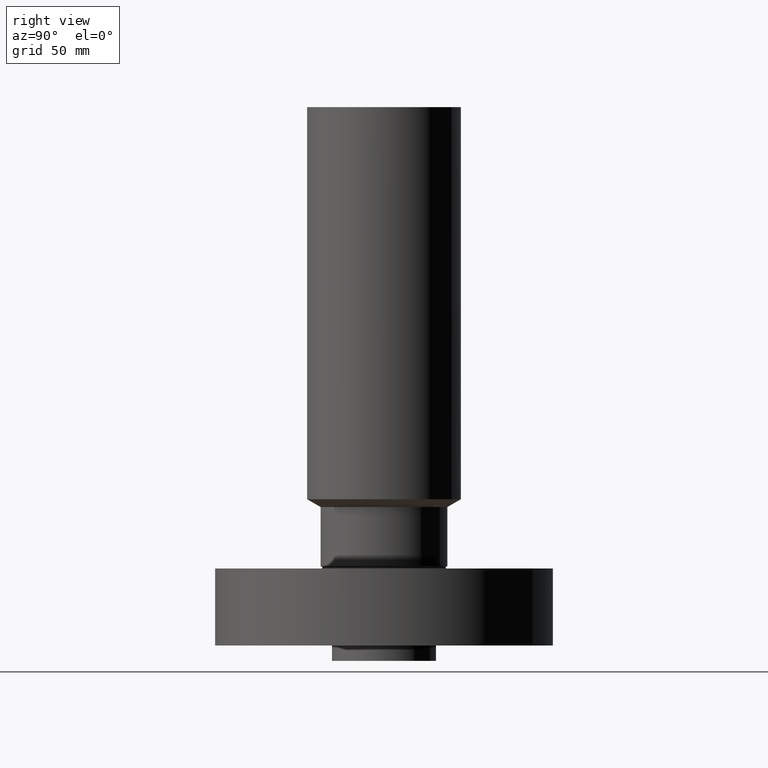
[diagram: clean part render]
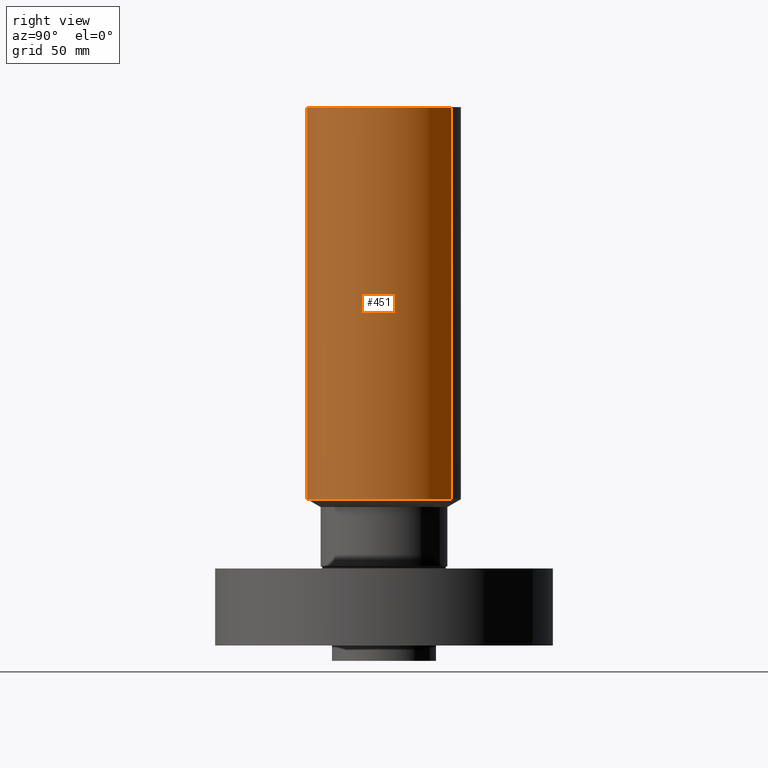
[diagram: same view with one face highlighted and labeled with its STEP entity id]
A machine part, right view. The second image highlights one B-rep face of the part: STEP entity #451.
In plain terms, the highlighted cylindrical surface (partial cylindrical patch) has radius 31.75 mm, axis along (0, 0, -1).
Its self-contained STEP definition (entity closure, byte-faithful):
#392=AXIS2_PLACEMENT_3D('Circle Axis2P3D',#390,#391,$) ;
#424=AXIS2_PLACEMENT_3D('Cylinder Axis2P3D',#421,#422,#423) ;
#435=AXIS2_PLACEMENT_3D('Circle Axis2P3D',#433,#434,$) ;
#387=CARTESIAN_POINT('Vertex',(0.599281923258,1.09697820237,2.37701705923)) ;
#390=CARTESIAN_POINT('Axis2P3D Location',(0.,0.,2.37701705923)) ;
#394=CARTESIAN_POINT('Vertex',(-0.599281923258,-1.09697820237,2.37701705923)) ;
#421=CARTESIAN_POINT('Axis2P3D Location',(0.,0.,4.25000000002)) ;
#426=CARTESIAN_POINT('Line Origine',(0.599281923258,1.09697820237,5.56350852963)) ;
#430=CARTESIAN_POINT('Vertex',(0.599281923258,1.09697820237,8.75000000003)) ;
#433=CARTESIAN_POINT('Axis2P3D Location',(0.,0.,8.75000000003)) ;
#437=CARTESIAN_POINT('Vertex',(-0.599281923258,-1.09697820237,8.75000000003)) ;
#440=CARTESIAN_POINT('Line Origine',(-0.599281923258,-1.09697820237,5.56350852963)) ;
#391=DIRECTION('Axis2P3D Direction',(-0.,0.,0.0393700787402)) ;
#422=DIRECTION('Axis2P3D Direction',(0.,0.,-0.0393700787402)) ;
#423=DIRECTION('Axis2P3D XDirection',(-0.0188750212049,-0.0345504945626,0.)) ;
#427=DIRECTION('Vector Direction',(0.,0.,-0.0393700787402)) ;
#434=DIRECTION('Axis2P3D Direction',(0.,0.,-0.0393700787402)) ;
#441=DIRECTION('Vector Direction',(0.,0.,-0.0393700787402)) ;
#428=VECTOR('Line Direction',#427,0.0393700787402) ;
#442=VECTOR('Line Direction',#441,0.0393700787402) ;
#446=ORIENTED_EDGE('',*,*,#396,.F.) ;
#447=ORIENTED_EDGE('',*,*,#432,.T.) ;
#448=ORIENTED_EDGE('',*,*,#439,.T.) ;
#449=ORIENTED_EDGE('',*,*,#444,.F.) ;
#451=ADVANCED_FACE('PartBody',(#450),#425,.T.) ;
#393=CIRCLE('generated circle',#392,1.25000000001) ;
#436=CIRCLE('generated circle',#435,1.25000000001) ;
#425=CYLINDRICAL_SURFACE('generated cylinder',#424,1.25000000001) ;
#396=EDGE_CURVE('',#388,#395,#393,.F.) ;
#432=EDGE_CURVE('',#388,#431,#429,.F.) ;
#439=EDGE_CURVE('',#431,#438,#436,.T.) ;
#444=EDGE_CURVE('',#395,#438,#443,.F.) ;
#445=EDGE_LOOP('',(#446,#447,#448,#449)) ;
#450=FACE_OUTER_BOUND('',#445,.T.) ;
#429=LINE('Line',#426,#428) ;
#443=LINE('Line',#440,#442) ;
#388=VERTEX_POINT('',#387) ;
#395=VERTEX_POINT('',#394) ;
#431=VERTEX_POINT('',#430) ;
#438=VERTEX_POINT('',#437) ;